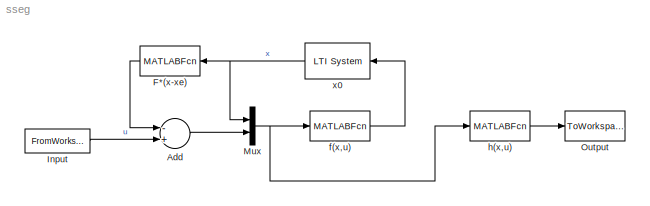
MODEL sseg
KIND model
BLOCK [Sum] Add
  CollapseMode = All dimensions
  InputSameDT = off
  Inputs = -+
  OutDataTypeMode = Inherit via internal rule
  OutScaling = 2^-10
  Ports = [2, 1]
  SaturateOnIntegerOverflow = off
BLOCK [MATLABFcn] F*(x-xe)
  MATLABFcn = [F*(u-xe);0]
  Ports = [1, 1]
BLOCK [FromWorkspace] Input
  OutputAfterFinalValue = Setting to zero
  SampleTime = 0
  VariableName = in
BLOCK [Mux] Mux
  DisplayOption = bar
  Inputs = 2
  Ports = [2, 1]
BLOCK [ToWorkspace] Output
  MaxDataPoints = inf
  SampleTime = -1
  SaveFormat = Structure With Time
  VariableName = out
BLOCK [MATLABFcn] f(x,u)
  MATLABFcn = fseg(u)
  Ports = [1, 1]
BLOCK [MATLABFcn] h(x,u)
  MATLABFcn = hseg
  Ports = [1, 1]
BLOCK [Reference] x0  REF=cstblocks/LTI System
  FunctionWithSeparateData = off
  IC = x0
  Ports = [1, 1]
  RTWMemSecDataConstants = Inherit from model
  RTWMemSecDataInternal = Inherit from model
  RTWMemSecDataParameters = Inherit from model
  RTWMemSecFuncExecute = Inherit from model
  RTWMemSecFuncInitTerm = Inherit from model
  ShowPortLabels = FromPortIcon
  SourceBlock = cstblocks/LTI System
  SourceType = LTI Block
  SystemSampleTime = -1
  sys = integrator
LINE Add:1 -> Mux:2
LINE F*(x-xe):1 -> Add:1
LINE Input:1 -> Add:2
NET Mux:1 -> f(x,u):1, h(x,u):1
LINE f(x,u):1 -> x0:1
LINE h(x,u):1 -> Output:1
NET x0:1 -> F*(x-xe):1, Mux:1
note: NET lines group one-source signal fan-out (src -> all destinations, sorted); 1:1 wires keep LINE
